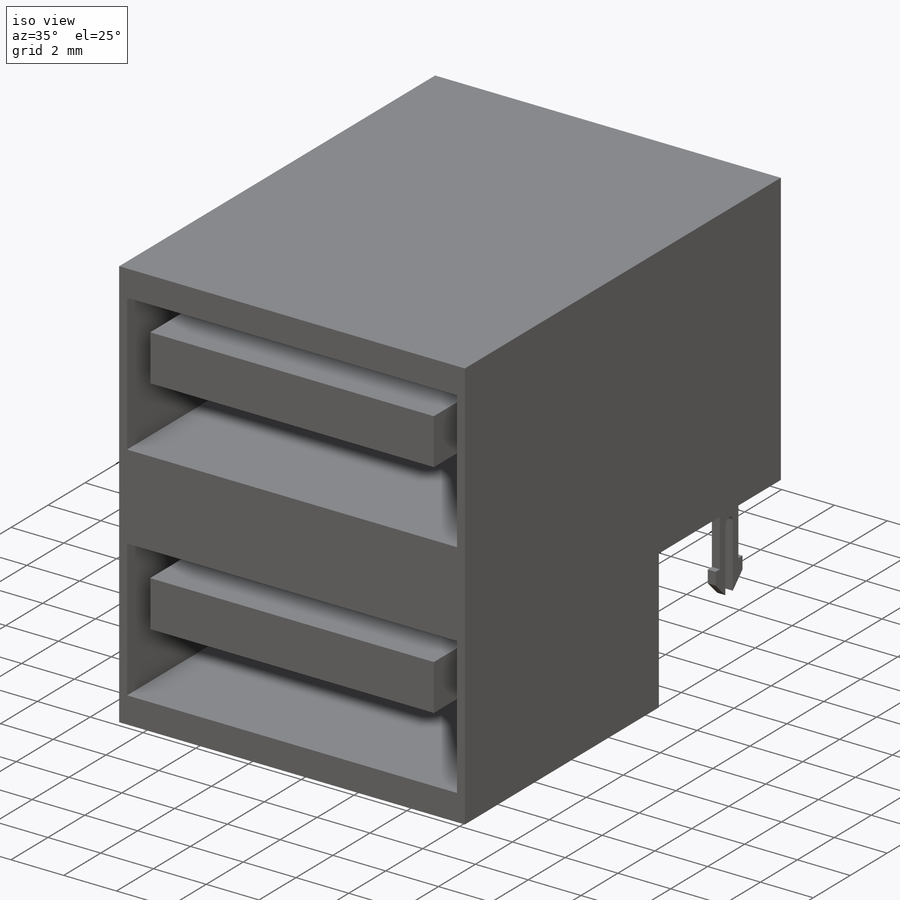
[diagram: iso view]
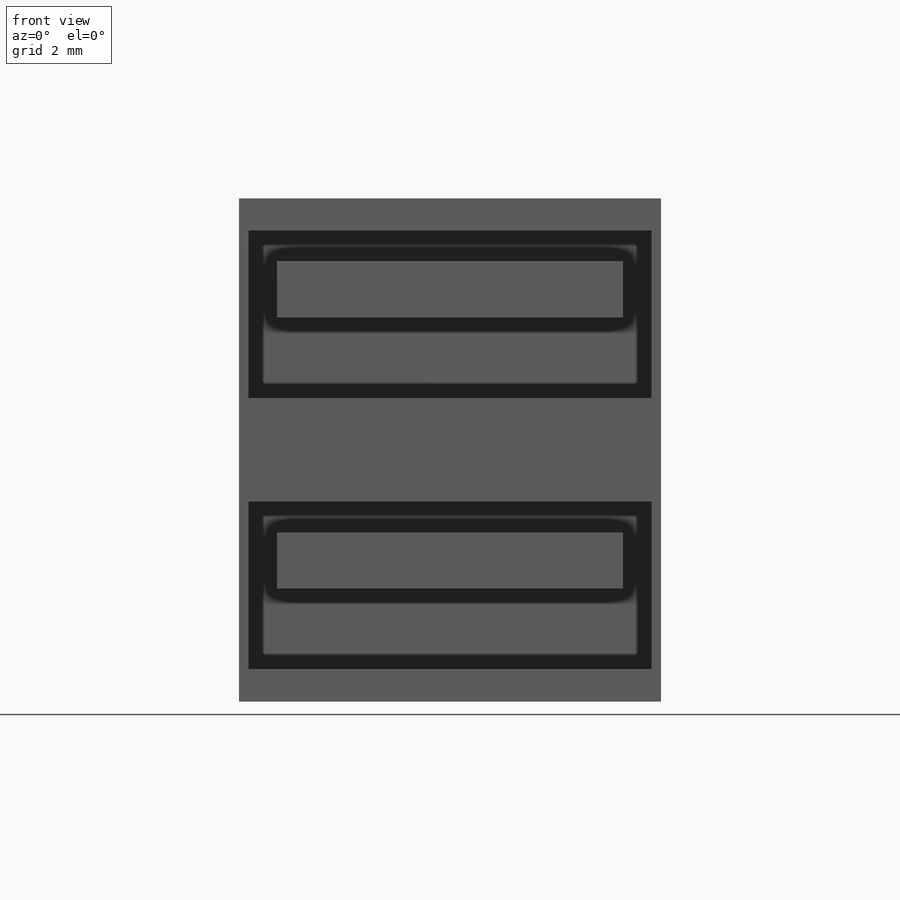
[diagram: front view]
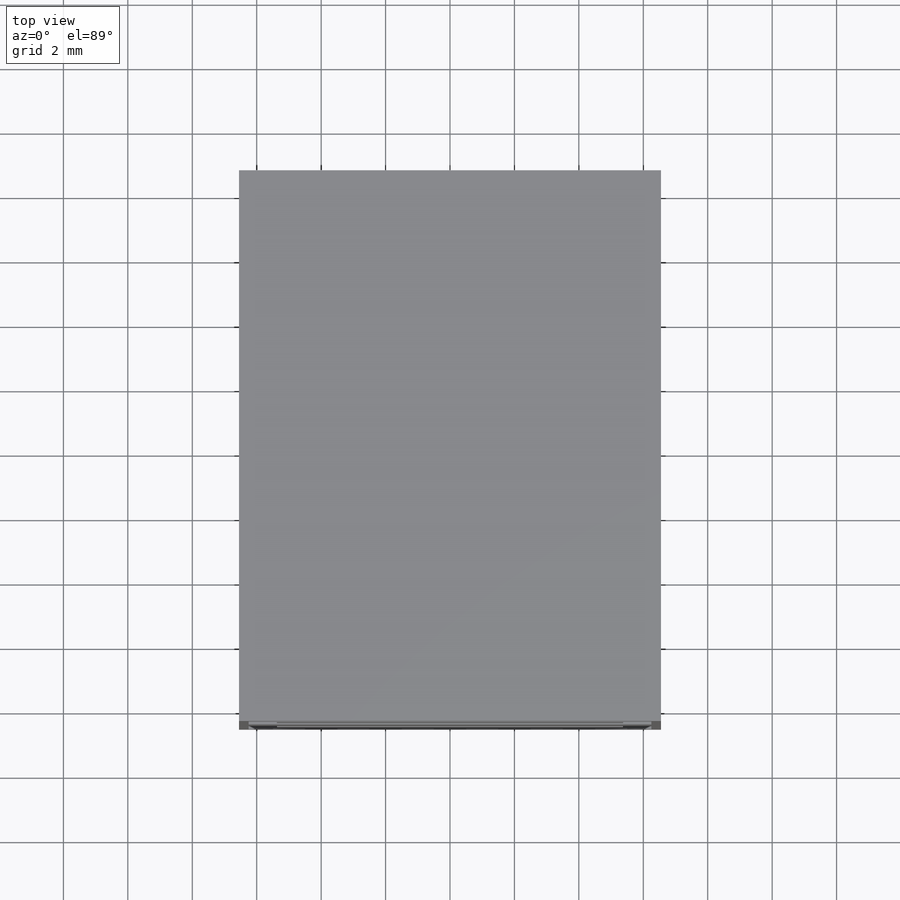
[diagram: top view]
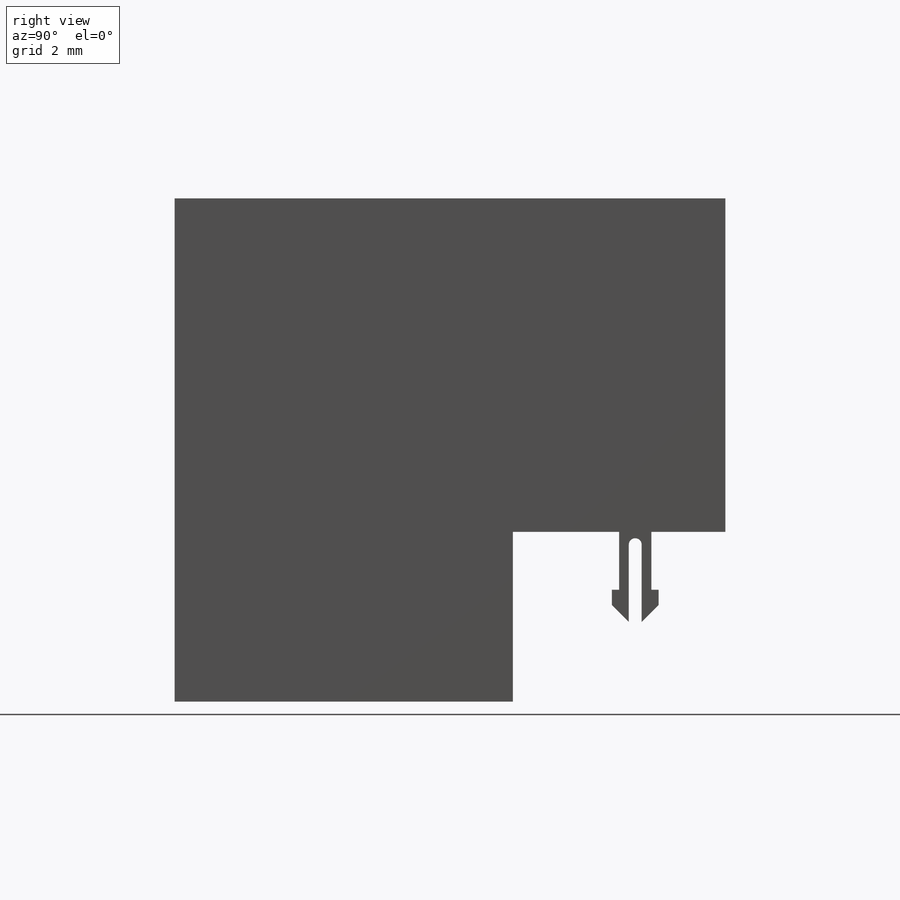
[diagram: right view]
SOLIDWORKS PART (.sldprt)
format: sldprt  version: not decoded by parser v0  size: 272,896 bytes
history: native  units: mm
features: sketch x3, extrude x2, material x1, cut_extrude x1, mirror x1 (+11 scaffold rows collapsed)
feature tree (19):
  scaffold x11  (default folders/planes/origin — collapsed)
  material  "Material <not specified>"
  sketch  "Sketch1"  dims[D1=10.5mm D2=17.1mm D3=10.35mm D4=15.62mm]
  extrude  "Boss-Extrude1"  Depth=6.55mm
  sketch  "Sketch2"  dims[c1.D1=1.0mm c1.D2=13.62mm c1.D3=6.25mm c1.D4=12.5mm c1.D5=6.25mm c1.D6=12.5mm c1.D7=5.2mm c1.D8=5.2mm c1.D9=2.5mm c1.D10=2.5mm c1.D11=10.75mm c1.D12=5.375mm c1.D13=17.182mm c2.D13=90.0deg c3.D13=1.75mm c3.D14=1.75mm c3.D15=10.75mm c3.D16=5.375mm]
  cut_extrude  "Cut-Extrude1"  Depth=9.5mm
  sketch  "Sketch3"  dims[c1.D14=0.195mm c1.D1=14.3mm c1.D2=2.8mm c1.D3=1.45mm c1.D4=1.45mm c1.D5=0.2mm c1.D6=0.4mm c1.D7=0.2mm c1.D8=0.5mm c1.D9=0.5mm c1.D10=1.0mm c1.D11=1.0mm c1.D12=0.525mm c2.D12=45.0deg c2.D13=~6.352911mm c3.D13=45.0deg c3.D15=~2.751847mm c4.D15=45.0deg c5.D15=0.475mm c6.D15=90.0deg c7.D15=0.525mm c7.D16=0.525mm c7.D17=2.8mm]
  extrude  "Boss-Extrude2"  Depth=0.3mm
  mirror  "Mirror1"
decode coverage: 6 of 7 modeling features carry decoded parameters
note: ~ marks probable driven/reference dimensions
note: suppression state not decoded; provenance and decode notes live in map.json
